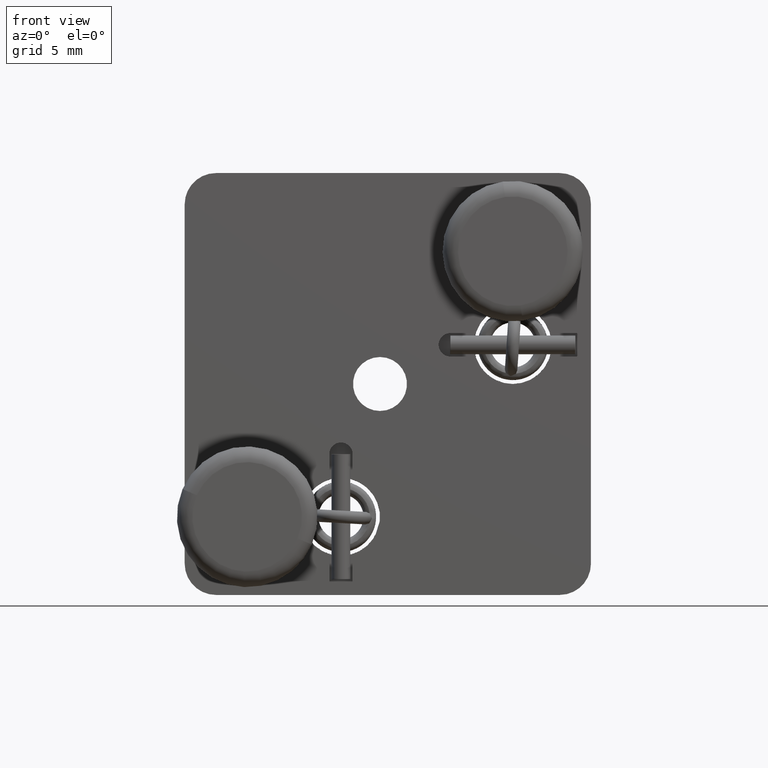
[diagram: clean part render]
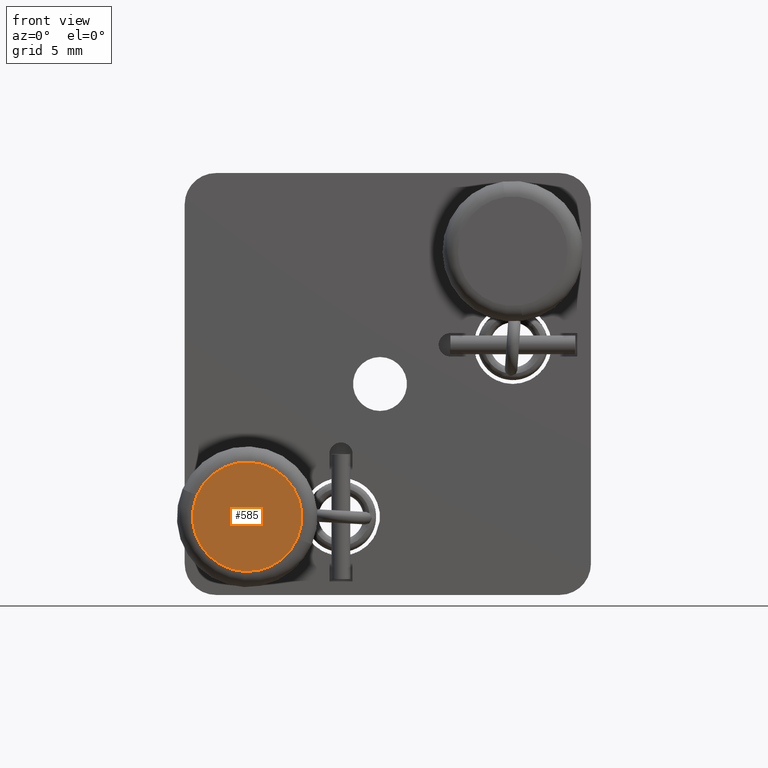
[diagram: same view with one face highlighted and labeled with its STEP entity id]
A machine part, front view. The second image highlights one B-rep face of the part: STEP entity #585.
In plain terms, the highlighted planar face has unit normal (-0, -1, 0).
Its self-contained STEP definition (entity closure, byte-faithful):
#251 = DIRECTION ( 'NONE',  ( -1.041072350597160300E-016, -1.000000000000000000, 8.501206851033395900E-017 ) ) ;
#585 = ADVANCED_FACE ( 'NONE', ( #5610 ), #2164, .T. ) ;
#1833 = DIRECTION ( 'NONE',  ( -1.041072350597160300E-016, -1.000000000000000000, 8.501206851033395900E-017 ) ) ;
#1953 = CIRCLE ( 'NONE', #3308, 3.500000000000006200 ) ;
#2164 = PLANE ( 'NONE',  #2284 ) ;
#2233 = DIRECTION ( 'NONE',  ( -1.041072350597162900E-016, -1.000000000000000000, 8.501206851033407000E-017 ) ) ;
#2284 = AXIS2_PLACEMENT_3D ( 'NONE', #7310, #2233, #8168 ) ;
#2831 = CARTESIAN_POINT ( 'NONE',  ( -12.44319259425118100, -23.49123321784738400, 17.87792284919945700 ) ) ;
#3293 = CARTESIAN_POINT ( 'NONE',  ( -6.008496448618784800, -23.49123321784738400, 15.12207715080055300 ) ) ;
#3308 = AXIS2_PLACEMENT_3D ( 'NONE', #6919, #1833, #7764 ) ;
#3582 = EDGE_LOOP ( 'NONE', ( #8181, #7011 ) ) ;
#4390 = AXIS2_PLACEMENT_3D ( 'NONE', #5326, #251, #6212 ) ;
#5326 = CARTESIAN_POINT ( 'NONE',  ( -9.225844521434984500, -23.49123321784738400, 16.50000000000000400 ) ) ;
#5610 = FACE_OUTER_BOUND ( 'NONE', #3582, .T. ) ;
#6190 = CIRCLE ( 'NONE', #4390, 3.500000000000006200 ) ;
#6212 = DIRECTION ( 'NONE',  ( 0.9192423065189123700, 0.0000000000000000000, -0.3936922426284137900 ) ) ;
#6748 = EDGE_CURVE ( 'NONE', #9446, #8798, #1953, .T. ) ;
#6919 = CARTESIAN_POINT ( 'NONE',  ( -9.225844521434984500, -23.49123321784738400, 16.50000000000000400 ) ) ;
#7011 = ORIENTED_EDGE ( 'NONE', *, *, #7503, .T. ) ;
#7310 = CARTESIAN_POINT ( 'NONE',  ( -9.225844521434984500, -23.49123321784738400, 16.50000000000000400 ) ) ;
#7503 = EDGE_CURVE ( 'NONE', #8798, #9446, #6190, .T. ) ;
#7764 = DIRECTION ( 'NONE',  ( 0.9192423065189123700, 0.0000000000000000000, -0.3936922426284137900 ) ) ;
#8168 = DIRECTION ( 'NONE',  ( 0.9192423065189124800, -1.291683667839139600E-016, -0.3936922426284135700 ) ) ;
#8181 = ORIENTED_EDGE ( 'NONE', *, *, #6748, .T. ) ;
#8798 = VERTEX_POINT ( 'NONE', #2831 ) ;
#9446 = VERTEX_POINT ( 'NONE', #3293 ) ;